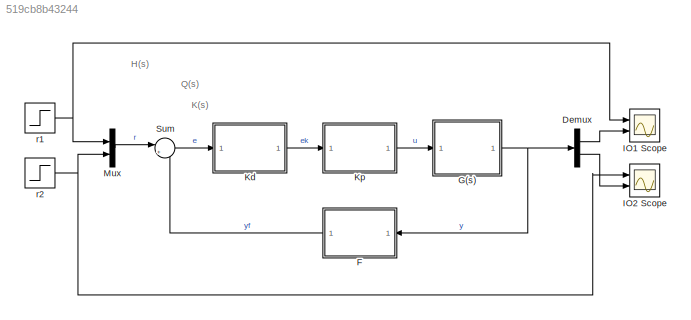
MODEL slx_519cb8b43244
KIND model
CONFIG AbsTol = auto
CONFIG EnableMultiTasking = off
CONFIG FixedStep = auto
CONFIG MaxStep = auto
CONFIG MinStep = auto
CONFIG RelTol = 1e-3
CONFIG SampleTimeConstraint = Unconstrained
CONFIG Solver = VariableStepAuto
CONFIG SolverName = VariableStepAuto
CONFIG StartTime = 0.0
CONFIG StopTime = 10.0
BLOCK [Demux] Demux
  DisplayOption = bar
  Outputs = 2
  Ports = [1, 2]
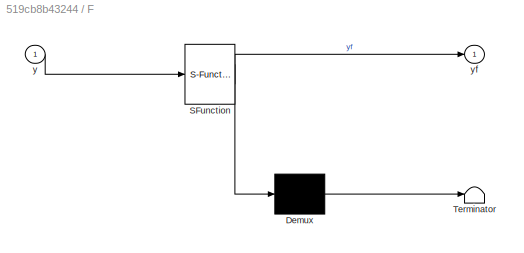
BLOCK [SubSystem] F
  ErrorFcn = Stateflow.Translate.translate
  PermitHierarchicalResolution = ExplicitOnly
  Ports = [1, 1]
  RequestExecContextInheritance = off
  SFBlockType = MATLAB Function
  TreatAsAtomicUnit = on
BLOCK [Demux] F/ Demux 
  Outputs = 1
  Ports = [1, 1]
BLOCK [S-Function] F/ SFunction 
  EnableBusSupport = on
  FunctionName = sf_sfun
  PortCounts = [1 2]
  Ports = [1, 2]
  SFcnIsStateOwnerBlock = off
  SFunctionDeploymentMode = off
  Tag = Stateflow S-Function 4
BLOCK [Terminator] F/ Terminator 
BLOCK [Inport] F/y
  IconDisplay = Port number
BLOCK [Outport] F/yf
  IconDisplay = Port number
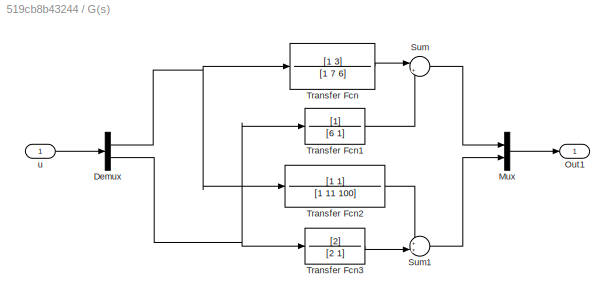
BLOCK [SubSystem] G(s)
  Ports = [1, 1]
  RequestExecContextInheritance = off
BLOCK [Demux] G(s)/Demux
  DisplayOption = bar
  Outputs = 2
  Ports = [1, 2]
BLOCK [Mux] G(s)/Mux
  DisplayOption = bar
  Inputs = 2
  Ports = [2, 1]
BLOCK [Outport] G(s)/Out1
  IconDisplay = Port number
BLOCK [Sum] G(s)/Sum
  IconShape = round
  InputSameDT = off
  Inputs = |++
  OutDataTypeStr = Inherit: Inherit via internal rule
  Ports = [2, 1]
  SaturateOnIntegerOverflow = off
BLOCK [Sum] G(s)/Sum1
  IconShape = round
  InputSameDT = off
  Inputs = ++|
  OutDataTypeStr = Inherit: Inherit via internal rule
  Ports = [2, 1]
  SaturateOnIntegerOverflow = off
BLOCK [TransferFcn] G(s)/Transfer Fcn
  Denominator = [1 7 6]
  Numerator = [1 3]
BLOCK [TransferFcn] G(s)/Transfer Fcn1
  Denominator = [6 1]
BLOCK [TransferFcn] G(s)/Transfer Fcn2
  Denominator = [1 11 100]
  Numerator = [1 1]
BLOCK [TransferFcn] G(s)/Transfer Fcn3
  Denominator = [2 1]
  Numerator = [2]
BLOCK [Inport] G(s)/u
  IconDisplay = Port number
BLOCK [Scope] IO1 Scope
  Floating = off
  NumInputPorts = 2
  Ports = [2]
  ScopeSpecificationString = Simulink.scopes.TimeScopeBlockCfg('CurrentConfiguration', extmgr.ConfigurationSet(extmgr.Configuration('Core','General UI',true),extmgr.Configuration('Core','Source UI',true),extmgr.Configuration('Sources','WiredSimulink',true),extmgr.Configuration('Visuals','Time Domain',true,'SerializedDisplays',{struct('MinYLimReal','-0.125','MaxYLimReal','1.125','YLabelReal','','MinYLimMag','0.00000','MaxYLimM...<+1420ch>
BLOCK [Scope] IO2 Scope
  Floating = off
  NumInputPorts = 2
  Ports = [2]
  ScopeSpecificationString = Simulink.scopes.TimeScopeBlockCfg('CurrentConfiguration', extmgr.ConfigurationSet(extmgr.Configuration('Core','General UI',true),extmgr.Configuration('Core','Source UI',true),extmgr.Configuration('Sources','WiredSimulink',true,'DataLoggingVariableName','ScopeData1'),extmgr.Configuration('Visuals','Time Domain',true,'SerializedDisplays',{struct('MinYLimReal','-0.125','MaxYLimReal','1.125','YLabelRe...<+1459ch>
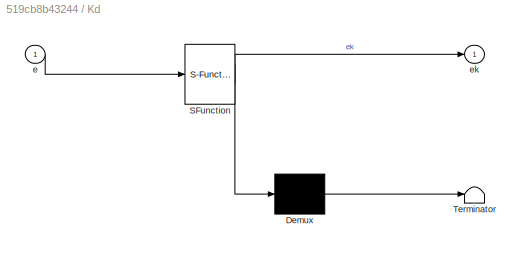
BLOCK [SubSystem] Kd
  ErrorFcn = Stateflow.Translate.translate
  PermitHierarchicalResolution = ExplicitOnly
  Ports = [1, 1]
  RequestExecContextInheritance = off
  SFBlockType = MATLAB Function
  TreatAsAtomicUnit = on
BLOCK [Demux] Kd/ Demux 
  Outputs = 1
  Ports = [1, 1]
BLOCK [S-Function] Kd/ SFunction 
  EnableBusSupport = on
  FunctionName = sf_sfun
  PortCounts = [1 2]
  Ports = [1, 2]
  SFcnIsStateOwnerBlock = off
  SFunctionDeploymentMode = off
  Tag = Stateflow S-Function 3
BLOCK [Terminator] Kd/ Terminator 
BLOCK [Inport] Kd/e
  IconDisplay = Port number
BLOCK [Outport] Kd/ek
  IconDisplay = Port number
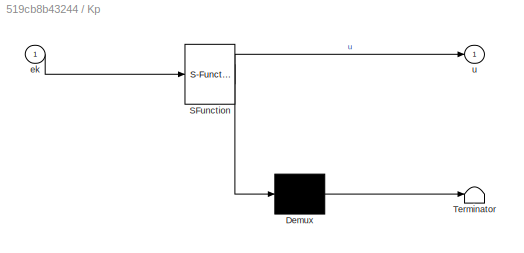
BLOCK [SubSystem] Kp
  ErrorFcn = Stateflow.Translate.translate
  PermitHierarchicalResolution = ExplicitOnly
  Ports = [1, 1]
  RequestExecContextInheritance = off
  SFBlockType = MATLAB Function
  TreatAsAtomicUnit = on
BLOCK [Demux] Kp/ Demux 
  Outputs = 1
  Ports = [1, 1]
BLOCK [S-Function] Kp/ SFunction 
  EnableBusSupport = on
  FunctionName = sf_sfun
  PortCounts = [1 2]
  Ports = [1, 2]
  SFcnIsStateOwnerBlock = off
  SFunctionDeploymentMode = off
  Tag = Stateflow S-Function 1
BLOCK [Terminator] Kp/ Terminator 
BLOCK [Inport] Kp/ek
  IconDisplay = Port number
BLOCK [Outport] Kp/u
  IconDisplay = Port number
BLOCK [Mux] Mux
  DisplayOption = bar
  Inputs = 2
  Ports = [2, 1]
BLOCK [Sum] Sum
  IconShape = round
  InputSameDT = off
  Inputs = |+-
  OutDataTypeStr = Inherit: Inherit via internal rule
  Ports = [2, 1]
  SaturateOnIntegerOverflow = off
BLOCK [Step] r1
  SampleTime = 0
BLOCK [Step] r2
  SampleTime = 0
ANNOTATION (root): H(s)
ANNOTATION (root): K(s)
ANNOTATION (root): Q(s)
LINE Demux:1 -> IO1 Scope:2
LINE Demux:2 -> IO2 Scope:2
LINE F:1 -> Sum:2
NET G(s)/Demux:1 -> G(s)/Transfer Fcn2:1, G(s)/Transfer Fcn:1
NET G(s)/Demux:2 -> G(s)/Transfer Fcn1:1, G(s)/Transfer Fcn3:1
LINE G(s)/Mux:1 -> G(s)/Out1:1
LINE G(s)/Sum1:1 -> G(s)/Mux:2
LINE G(s)/Sum:1 -> G(s)/Mux:1
LINE G(s)/Transfer Fcn1:1 -> G(s)/Sum:2
LINE G(s)/Transfer Fcn2:1 -> G(s)/Sum1:1
LINE G(s)/Transfer Fcn3:1 -> G(s)/Sum1:2
LINE G(s)/Transfer Fcn:1 -> G(s)/Sum:1
LINE G(s)/u:1 -> G(s)/Demux:1
NET G(s):1 -> Demux:1, F:1
LINE Kd:1 -> Kp:1
LINE Kp:1 -> G(s):1
LINE Mux:1 -> Sum:1
LINE Sum:1 -> Kd:1
NET r1:1 -> IO1 Scope:1, Mux:1
NET r2:1 -> IO2 Scope:1, Mux:2
note: NET lines group one-source signal fan-out (src -> all destinations, sorted); 1:1 wires keep LINE
CHART Kp states=1 transitions=1
  STATE_LABEL 'eML_blk_kernel()'
  STATE_LABEL 'SCRIPT:\nfunction u = Kp(ek)\n\nK = [2.0202, -1.0101\n    -0.010101, 0.505051];\n\nu = K*ek;\n'
CHART Kd states=1 transitions=1
  STATE_LABEL 'eML_blk_kernel()'
  STATE_LABEL 'SCRIPT:\nfunction ek = k1k2(e)\n\nk1 = 30;\nk2 = 30;\n\nK = [k1 0\n     0 k2];\n\nek = K*e;\n'
CHART F states=1 transitions=1
  STATE_LABEL 'eML_blk_kernel()'
  STATE_LABEL 'SCRIPT:\nfunction yf = I(y)\n\nF = eye(2);\n\nyf = F*y;\n'
